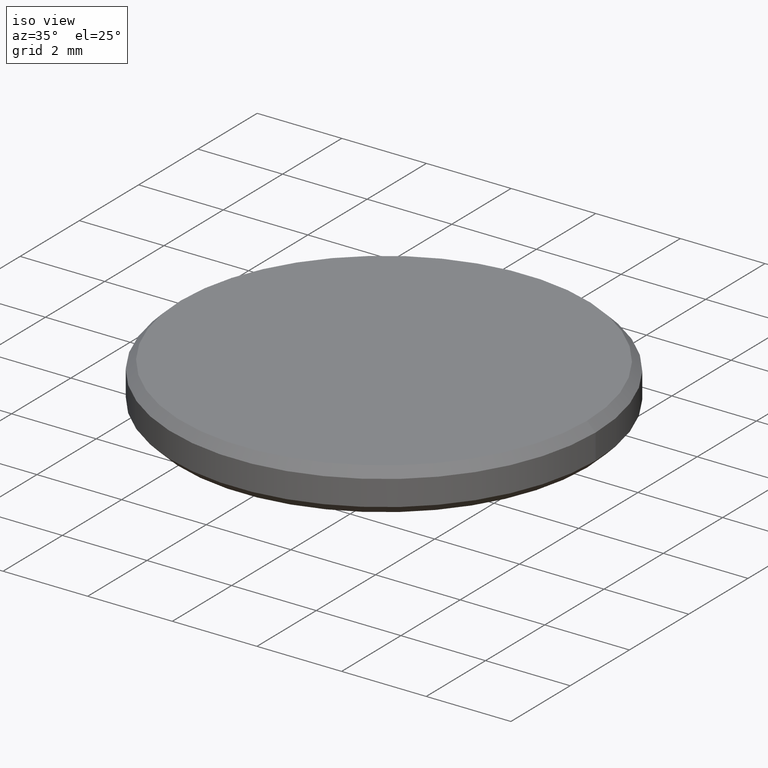
[diagram: clean part render]
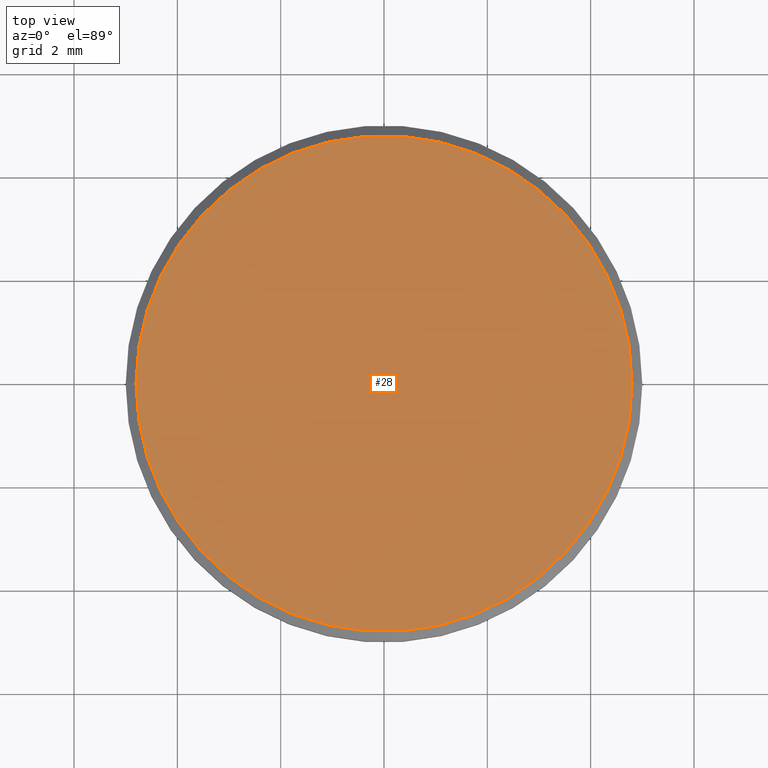
[diagram: tour spotlight — one face highlighted and labeled with its STEP entity id]
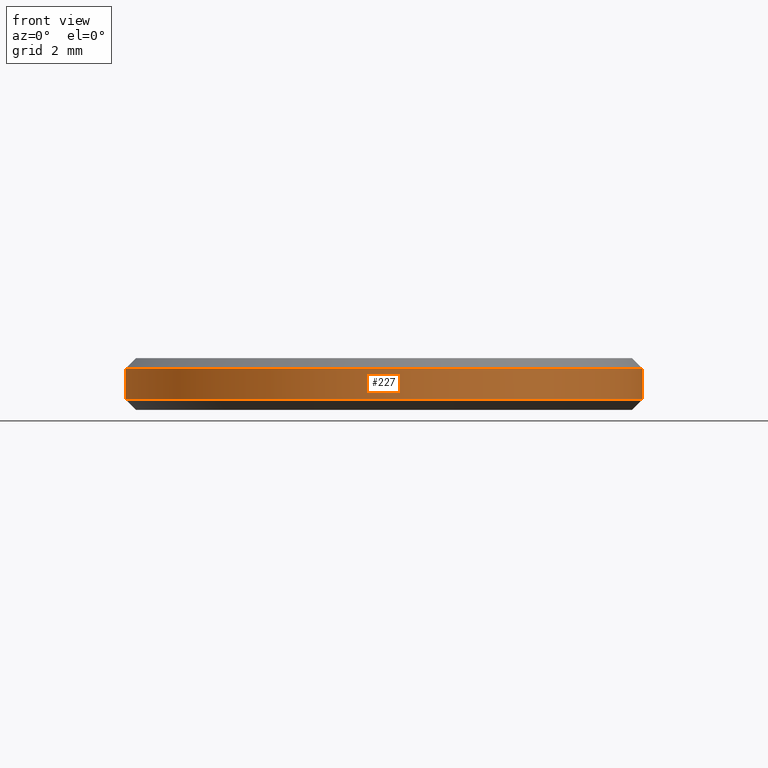
[diagram: tour spotlight — one face highlighted and labeled with its STEP entity id]
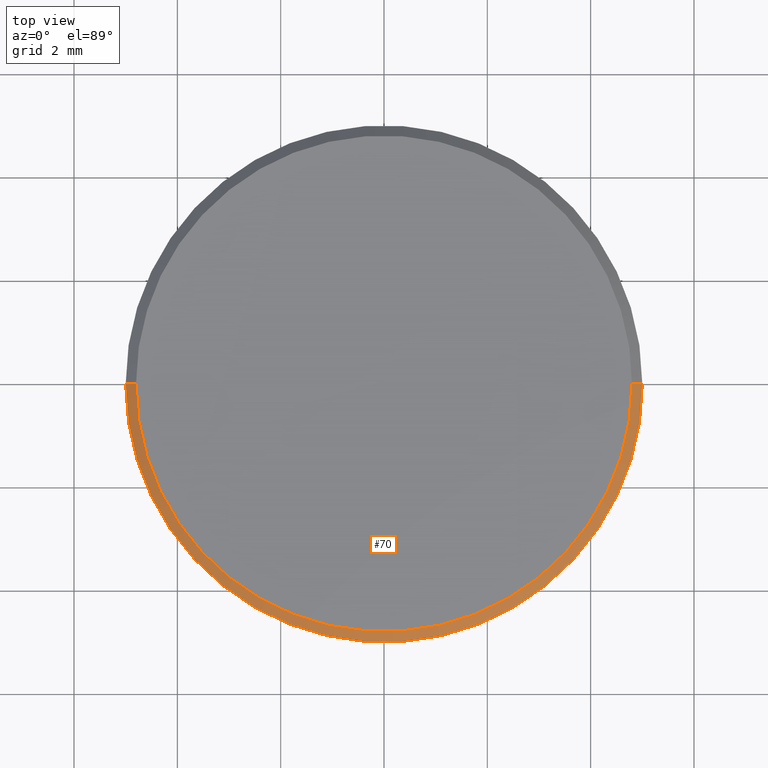
[diagram: tour spotlight — one face highlighted and labeled with its STEP entity id]
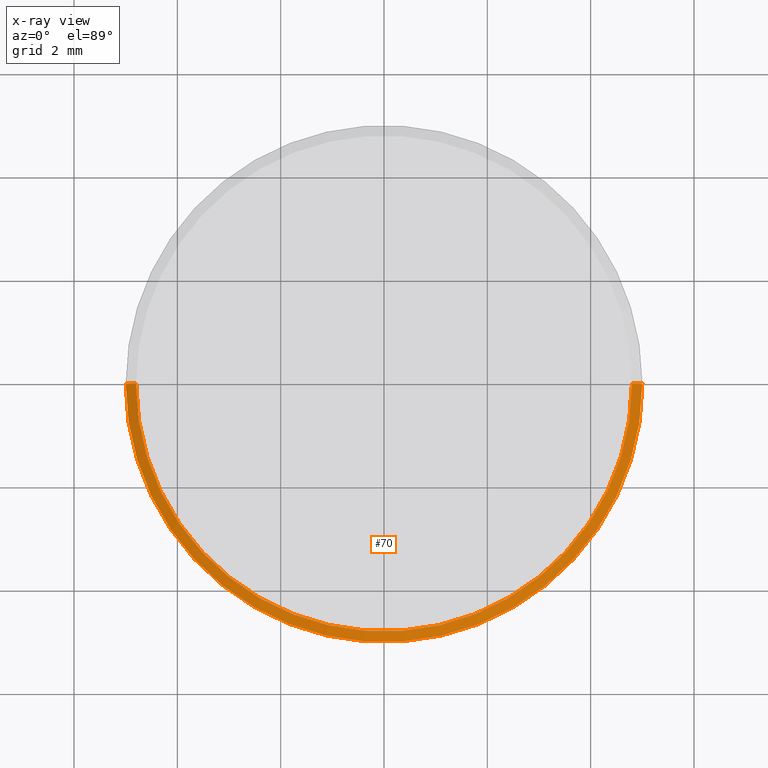
[diagram: x-ray of the same camera — body ghosted, this tour face saturated]
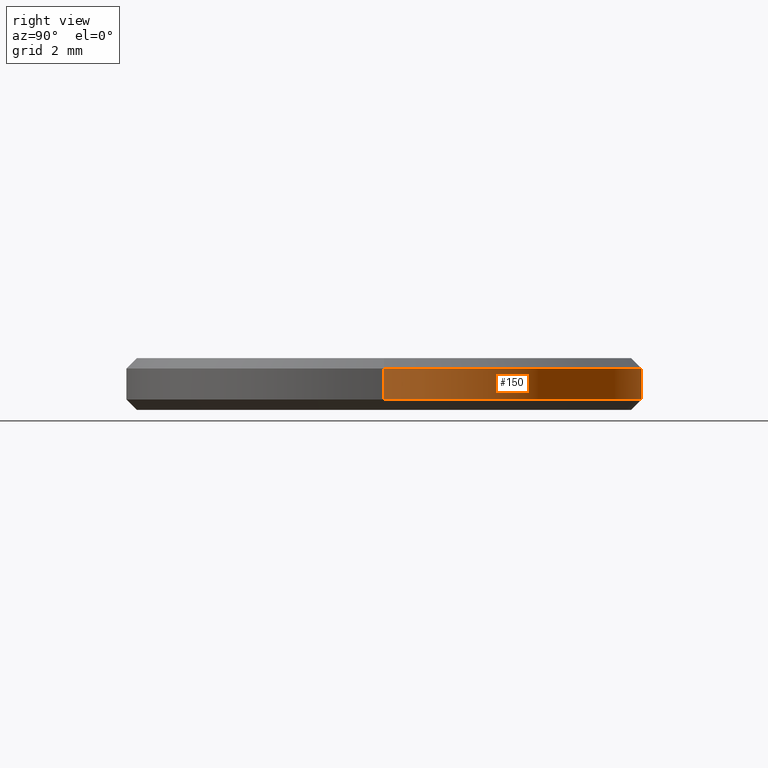
[diagram: tour spotlight — one face highlighted and labeled with its STEP entity id]
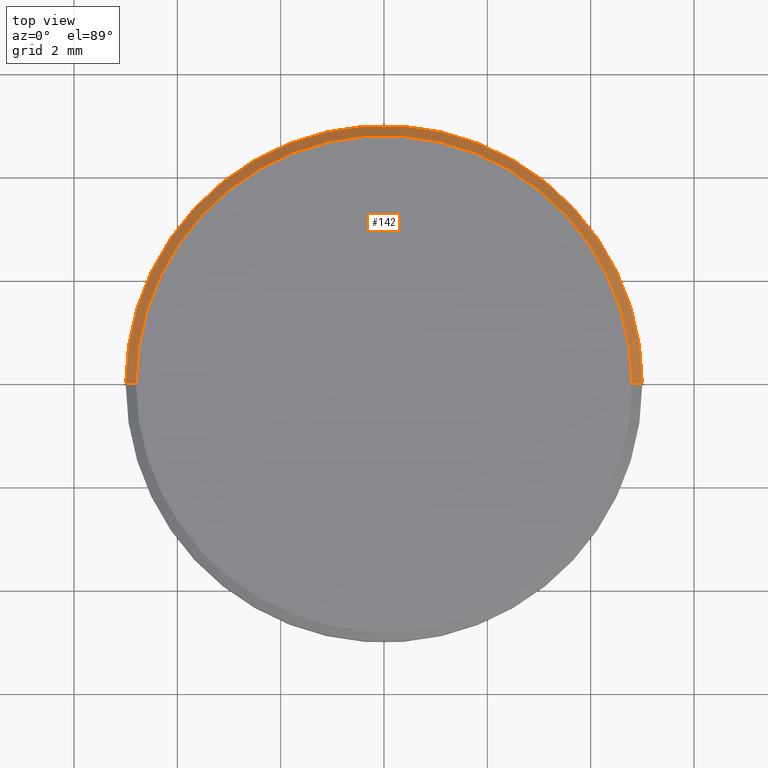
[diagram: tour spotlight — one face highlighted and labeled with its STEP entity id]
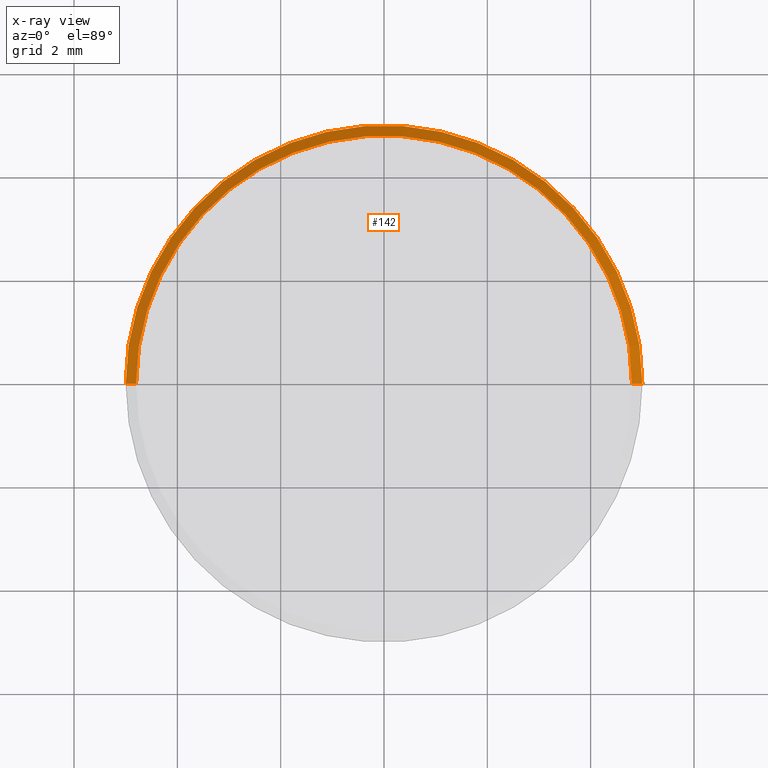
[diagram: x-ray of the same camera — body ghosted, this tour face saturated]
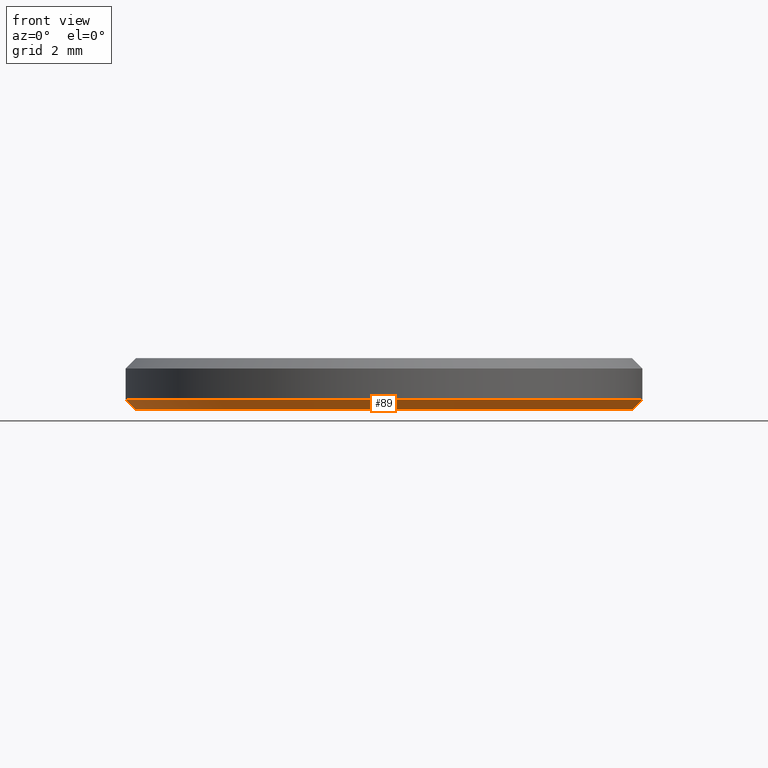
[diagram: tour spotlight — one face highlighted and labeled with its STEP entity id]
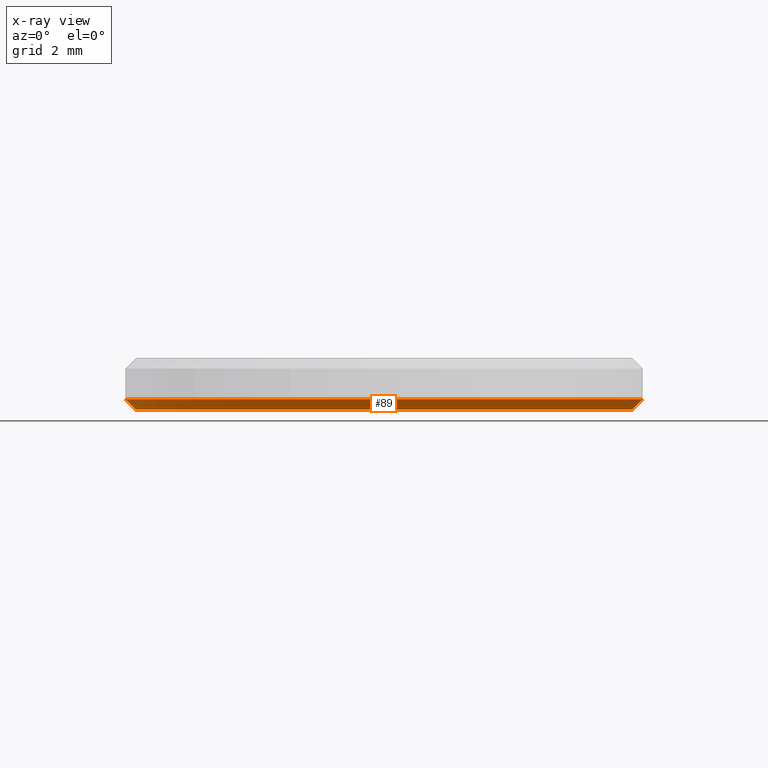
[diagram: x-ray of the same camera — body ghosted, this tour face saturated]
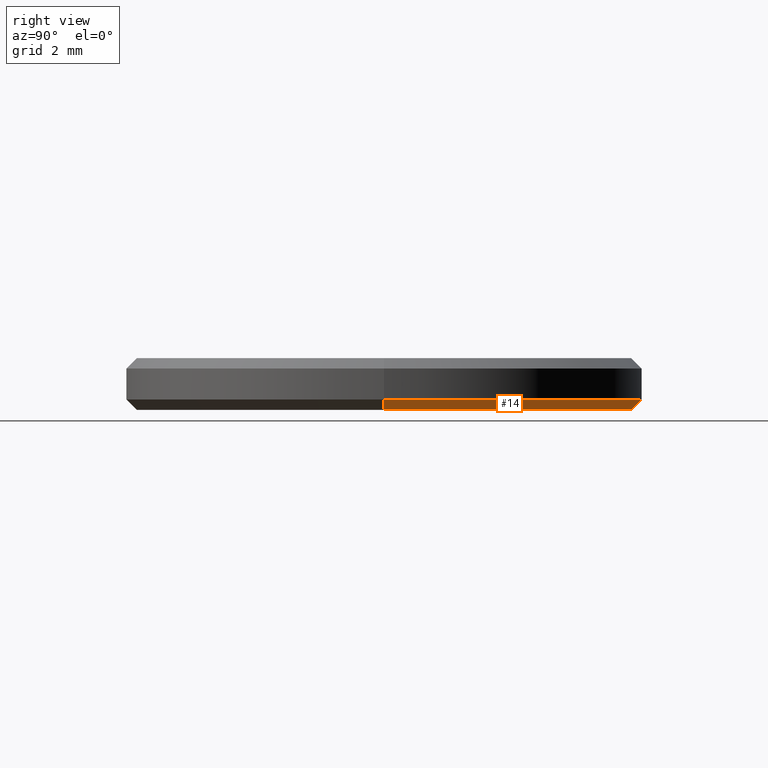
[diagram: tour spotlight — one face highlighted and labeled with its STEP entity id]
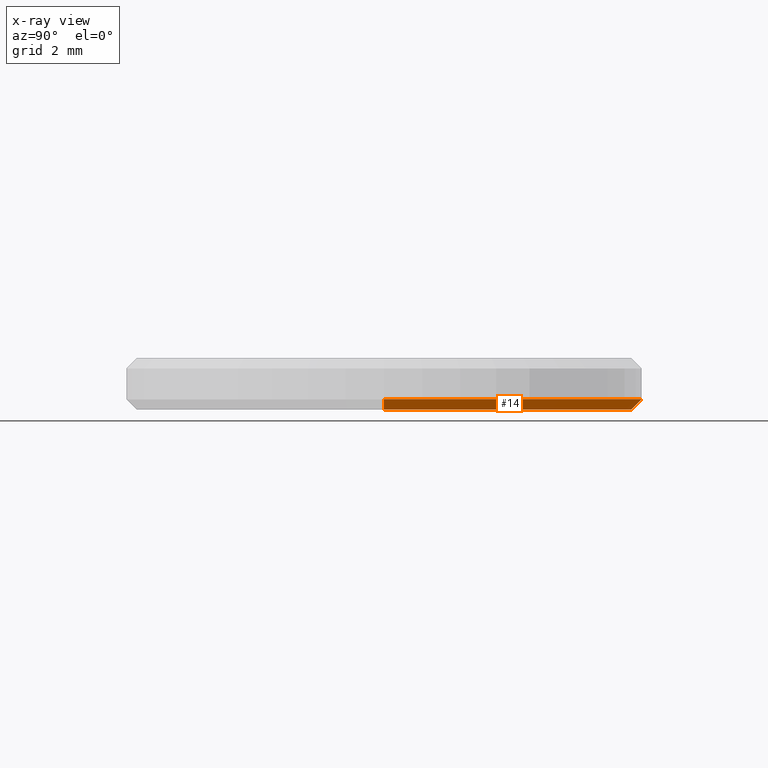
[diagram: x-ray of the same camera — body ghosted, this tour face saturated]
A machine part: a face-by-face anatomy tour. The part has 8 B-rep faces; the first image is the clean iso view, then the 7 largest visible faces are spotlighted one at a time (largest first), each with its STEP entity span.

Face 1 — top view, entity #28. In plain terms, the highlighted planar face has unit normal (0, 0, 1).
Definition (entity closure, byte-faithful):
#3 = VERTEX_POINT ( 'NONE', #158 ) ;
#8 = EDGE_CURVE ( 'NONE', #237, #3, #152, .T. ) ;
#13 = CARTESIAN_POINT ( 'NONE',  ( 4.800000000000002487, 6.000769315822031726E-16, 1.000000000000000000 ) ) ;
#22 = CARTESIAN_POINT ( 'NONE',  ( 0.000000000000000000, 0.000000000000000000, 1.000000000000000000 ) ) ;
#24 = ORIENTED_EDGE ( 'NONE', *, *, #127, .T. ) ;
#28 = ADVANCED_FACE ( 'NONE', ( #41 ), #101, .T. ) ;
#34 = AXIS2_PLACEMENT_3D ( 'NONE', #143, #215, #216 ) ;
#41 = FACE_OUTER_BOUND ( 'NONE', #99, .T. ) ;
#46 = CIRCLE ( 'NONE', #34, 4.800000000000002487 ) ;
#61 = DIRECTION ( 'NONE',  ( 0.000000000000000000, 0.000000000000000000, 1.000000000000000000 ) ) ;
#82 = DIRECTION ( 'NONE',  ( 1.000000000000000000, 0.000000000000000000, -0.000000000000000000 ) ) ;
#86 = ORIENTED_EDGE ( 'NONE', *, *, #8, .T. ) ;
#99 = EDGE_LOOP ( 'NONE', ( #24, #86 ) ) ;
#101 = PLANE ( 'NONE',  #122 ) ;
#122 = AXIS2_PLACEMENT_3D ( 'NONE', #239, #61, #82 ) ;
#127 = EDGE_CURVE ( 'NONE', #3, #237, #46, .T. ) ;
#143 = CARTESIAN_POINT ( 'NONE',  ( 0.000000000000000000, 0.000000000000000000, 1.000000000000000000 ) ) ;
#152 = CIRCLE ( 'NONE', #177, 4.800000000000002487 ) ;
#158 = CARTESIAN_POINT ( 'NONE',  ( -4.800000000000002487, 0.000000000000000000, 1.000000000000000000 ) ) ;
#177 = AXIS2_PLACEMENT_3D ( 'NONE', #22, #240, #229 ) ;
#215 = DIRECTION ( 'NONE',  ( 0.000000000000000000, 0.000000000000000000, 1.000000000000000000 ) ) ;
#216 = DIRECTION ( 'NONE',  ( 1.000000000000000000, 0.000000000000000000, 0.000000000000000000 ) ) ;
#229 = DIRECTION ( 'NONE',  ( 1.000000000000000000, 0.000000000000000000, 0.000000000000000000 ) ) ;
#237 = VERTEX_POINT ( 'NONE', #13 ) ;
#239 = CARTESIAN_POINT ( 'NONE',  ( 0.000000000000000000, 0.000000000000000000, 1.000000000000000000 ) ) ;
#240 = DIRECTION ( 'NONE',  ( 0.000000000000000000, 0.000000000000000000, 1.000000000000000000 ) ) ;

Face 2 — front view, entity #227. In plain terms, the highlighted cylindrical surface (partial cylindrical patch) has radius 5 mm, axis along (-0, -0, -1).
Definition (entity closure, byte-faithful):
#1 = CARTESIAN_POINT ( 'NONE',  ( 5.000000000000000000, 6.123233995736766282E-16, 0.1999999999999996503 ) ) ;
#17 = VERTEX_POINT ( 'NONE', #1 ) ;
#18 = ORIENTED_EDGE ( 'NONE', *, *, #110, .T. ) ;
#23 = ORIENTED_EDGE ( 'NONE', *, *, #55, .T. ) ;
#37 = EDGE_CURVE ( 'NONE', #97, #17, #211, .T. ) ;
#42 = LINE ( 'NONE', #118, #113 ) ;
#45 = CARTESIAN_POINT ( 'NONE',  ( 0.000000000000000000, 0.000000000000000000, 0.1999999999999996503 ) ) ;
#53 = DIRECTION ( 'NONE',  ( -1.000000000000000000, 0.000000000000000000, 0.000000000000000000 ) ) ;
#55 = EDGE_CURVE ( 'NONE', #184, #97, #42, .T. ) ;
#56 = CARTESIAN_POINT ( 'NONE',  ( 5.000000000000000000, 6.123233995736766282E-16, 1.000000000000000000 ) ) ;
#93 = CIRCLE ( 'NONE', #160, 5.000000000000000000 ) ;
#97 = VERTEX_POINT ( 'NONE', #138 ) ;
#106 = VECTOR ( 'NONE', #220, 1000.000000000000000 ) ;
#110 = EDGE_CURVE ( 'NONE', #153, #184, #93, .T. ) ;
#113 = VECTOR ( 'NONE', #226, 1000.000000000000000 ) ;
#116 = ORIENTED_EDGE ( 'NONE', *, *, #235, .F. ) ;
#118 = CARTESIAN_POINT ( 'NONE',  ( -5.000000000000000000, 0.000000000000000000, 1.000000000000000000 ) ) ;
#121 = CARTESIAN_POINT ( 'NONE',  ( 0.000000000000000000, 0.000000000000000000, 0.8000000000000012657 ) ) ;
#129 = EDGE_LOOP ( 'NONE', ( #116, #18, #23, #191 ) ) ;
#138 = CARTESIAN_POINT ( 'NONE',  ( -5.000000000000000000, 0.000000000000000000, 0.1999999999999996503 ) ) ;
#153 = VERTEX_POINT ( 'NONE', #193 ) ;
#155 = DIRECTION ( 'NONE',  ( 1.000000000000000000, 0.000000000000000000, 0.000000000000000000 ) ) ;
#160 = AXIS2_PLACEMENT_3D ( 'NONE', #121, #230, #174 ) ;
#161 = AXIS2_PLACEMENT_3D ( 'NONE', #181, #182, #53 ) ;
#174 = DIRECTION ( 'NONE',  ( 1.000000000000000000, 0.000000000000000000, 0.000000000000000000 ) ) ;
#175 = CARTESIAN_POINT ( 'NONE',  ( -5.000000000000000000, 0.000000000000000000, 0.8000000000000012657 ) ) ;
#179 = FACE_OUTER_BOUND ( 'NONE', #129, .T. ) ;
#181 = CARTESIAN_POINT ( 'NONE',  ( 0.000000000000000000, 0.000000000000000000, 1.000000000000000000 ) ) ;
#182 = DIRECTION ( 'NONE',  ( -0.000000000000000000, -0.000000000000000000, -1.000000000000000000 ) ) ;
#184 = VERTEX_POINT ( 'NONE', #175 ) ;
#191 = ORIENTED_EDGE ( 'NONE', *, *, #37, .T. ) ;
#193 = CARTESIAN_POINT ( 'NONE',  ( 5.000000000000000000, 6.123233995736766282E-16, 0.8000000000000012657 ) ) ;
#198 = AXIS2_PLACEMENT_3D ( 'NONE', #45, #204, #155 ) ;
#199 = LINE ( 'NONE', #56, #106 ) ;
#204 = DIRECTION ( 'NONE',  ( -0.000000000000000000, -0.000000000000000000, 1.000000000000000000 ) ) ;
#211 = CIRCLE ( 'NONE', #198, 5.000000000000000000 ) ;
#220 = DIRECTION ( 'NONE',  ( -0.000000000000000000, -0.000000000000000000, -1.000000000000000000 ) ) ;
#221 = CYLINDRICAL_SURFACE ( 'NONE', #161, 5.000000000000000000 ) ;
#226 = DIRECTION ( 'NONE',  ( -0.000000000000000000, -0.000000000000000000, -1.000000000000000000 ) ) ;
#227 = ADVANCED_FACE ( 'NONE', ( #179 ), #221, .T. ) ;
#230 = DIRECTION ( 'NONE',  ( 0.000000000000000000, 0.000000000000000000, -1.000000000000000000 ) ) ;
#235 = EDGE_CURVE ( 'NONE', #153, #17, #199, .T. ) ;

Face 3 — top view, entity #70. An x-ray twin of the same camera follows (body ghosted, this face saturated) — the face is partly hidden behind the body. In plain terms, the highlighted conical surface has half-angle 45 deg.
Definition (entity closure, byte-faithful):
#3 = VERTEX_POINT ( 'NONE', #158 ) ;
#4 = VECTOR ( 'NONE', #47, 1000.000000000000114 ) ;
#13 = CARTESIAN_POINT ( 'NONE',  ( 4.800000000000002487, 6.000769315822031726E-16, 1.000000000000000000 ) ) ;
#20 = ORIENTED_EDGE ( 'NONE', *, *, #110, .F. ) ;
#26 = VECTOR ( 'NONE', #36, 1000.000000000000114 ) ;
#34 = AXIS2_PLACEMENT_3D ( 'NONE', #143, #215, #216 ) ;
#36 = DIRECTION ( 'NONE',  ( -0.7071067811865460184, 0.000000000000000000, -0.7071067811865489050 ) ) ;
#43 = DIRECTION ( 'NONE',  ( 0.000000000000000000, 0.000000000000000000, -1.000000000000000000 ) ) ;
#46 = CIRCLE ( 'NONE', #34, 4.800000000000002487 ) ;
#47 = DIRECTION ( 'NONE',  ( 0.7071067811865460184, 8.659560562354913137E-17, -0.7071067811865489050 ) ) ;
#52 = CONICAL_SURFACE ( 'NONE', #140, 4.800000000000002487, 0.7853981633974461696 ) ;
#70 = ADVANCED_FACE ( 'NONE', ( #103 ), #52, .T. ) ;
#93 = CIRCLE ( 'NONE', #160, 5.000000000000000000 ) ;
#103 = FACE_OUTER_BOUND ( 'NONE', #148, .T. ) ;
#104 = ORIENTED_EDGE ( 'NONE', *, *, #217, .T. ) ;
#105 = CARTESIAN_POINT ( 'NONE',  ( 4.800000000000002487, 5.878304635907297169E-16, 1.000000000000000000 ) ) ;
#110 = EDGE_CURVE ( 'NONE', #153, #184, #93, .T. ) ;
#115 = LINE ( 'NONE', #132, #26 ) ;
#121 = CARTESIAN_POINT ( 'NONE',  ( 0.000000000000000000, 0.000000000000000000, 0.8000000000000012657 ) ) ;
#123 = LINE ( 'NONE', #105, #4 ) ;
#127 = EDGE_CURVE ( 'NONE', #3, #237, #46, .T. ) ;
#132 = CARTESIAN_POINT ( 'NONE',  ( -4.800000000000002487, 0.000000000000000000, 1.000000000000000000 ) ) ;
#136 = CARTESIAN_POINT ( 'NONE',  ( 0.000000000000000000, 0.000000000000000000, 1.000000000000000000 ) ) ;
#140 = AXIS2_PLACEMENT_3D ( 'NONE', #136, #43, #228 ) ;
#143 = CARTESIAN_POINT ( 'NONE',  ( 0.000000000000000000, 0.000000000000000000, 1.000000000000000000 ) ) ;
#148 = EDGE_LOOP ( 'NONE', ( #159, #169, #104, #20 ) ) ;
#153 = VERTEX_POINT ( 'NONE', #193 ) ;
#158 = CARTESIAN_POINT ( 'NONE',  ( -4.800000000000002487, 0.000000000000000000, 1.000000000000000000 ) ) ;
#159 = ORIENTED_EDGE ( 'NONE', *, *, #180, .F. ) ;
#160 = AXIS2_PLACEMENT_3D ( 'NONE', #121, #230, #174 ) ;
#169 = ORIENTED_EDGE ( 'NONE', *, *, #127, .F. ) ;
#174 = DIRECTION ( 'NONE',  ( 1.000000000000000000, 0.000000000000000000, 0.000000000000000000 ) ) ;
#175 = CARTESIAN_POINT ( 'NONE',  ( -5.000000000000000000, 0.000000000000000000, 0.8000000000000012657 ) ) ;
#180 = EDGE_CURVE ( 'NONE', #237, #153, #123, .T. ) ;
#184 = VERTEX_POINT ( 'NONE', #175 ) ;
#193 = CARTESIAN_POINT ( 'NONE',  ( 5.000000000000000000, 6.123233995736766282E-16, 0.8000000000000012657 ) ) ;
#215 = DIRECTION ( 'NONE',  ( 0.000000000000000000, 0.000000000000000000, 1.000000000000000000 ) ) ;
#216 = DIRECTION ( 'NONE',  ( 1.000000000000000000, 0.000000000000000000, 0.000000000000000000 ) ) ;
#217 = EDGE_CURVE ( 'NONE', #3, #184, #115, .T. ) ;
#228 = DIRECTION ( 'NONE',  ( -1.000000000000000000, 0.000000000000000000, 0.000000000000000000 ) ) ;
#230 = DIRECTION ( 'NONE',  ( 0.000000000000000000, 0.000000000000000000, -1.000000000000000000 ) ) ;
#237 = VERTEX_POINT ( 'NONE', #13 ) ;

Face 4 — right view, entity #150. In plain terms, the highlighted cylindrical surface (partial cylindrical patch) has radius 5 mm, axis along (-0, -0, -1).
Definition (entity closure, byte-faithful):
#1 = CARTESIAN_POINT ( 'NONE',  ( 5.000000000000000000, 6.123233995736766282E-16, 0.1999999999999996503 ) ) ;
#5 = FACE_OUTER_BOUND ( 'NONE', #38, .T. ) ;
#7 = CARTESIAN_POINT ( 'NONE',  ( 0.000000000000000000, 0.000000000000000000, 0.8000000000000012657 ) ) ;
#17 = VERTEX_POINT ( 'NONE', #1 ) ;
#25 = CYLINDRICAL_SURFACE ( 'NONE', #40, 5.000000000000000000 ) ;
#27 = DIRECTION ( 'NONE',  ( -1.000000000000000000, 0.000000000000000000, 0.000000000000000000 ) ) ;
#35 = DIRECTION ( 'NONE',  ( 1.000000000000000000, 0.000000000000000000, 0.000000000000000000 ) ) ;
#38 = EDGE_LOOP ( 'NONE', ( #238, #225, #201, #44 ) ) ;
#40 = AXIS2_PLACEMENT_3D ( 'NONE', #90, #194, #27 ) ;
#42 = LINE ( 'NONE', #118, #113 ) ;
#44 = ORIENTED_EDGE ( 'NONE', *, *, #55, .F. ) ;
#55 = EDGE_CURVE ( 'NONE', #184, #97, #42, .T. ) ;
#56 = CARTESIAN_POINT ( 'NONE',  ( 5.000000000000000000, 6.123233995736766282E-16, 1.000000000000000000 ) ) ;
#74 = AXIS2_PLACEMENT_3D ( 'NONE', #7, #200, #35 ) ;
#90 = CARTESIAN_POINT ( 'NONE',  ( 0.000000000000000000, 0.000000000000000000, 1.000000000000000000 ) ) ;
#97 = VERTEX_POINT ( 'NONE', #138 ) ;
#106 = VECTOR ( 'NONE', #220, 1000.000000000000000 ) ;
#113 = VECTOR ( 'NONE', #226, 1000.000000000000000 ) ;
#118 = CARTESIAN_POINT ( 'NONE',  ( -5.000000000000000000, 0.000000000000000000, 1.000000000000000000 ) ) ;
#138 = CARTESIAN_POINT ( 'NONE',  ( -5.000000000000000000, 0.000000000000000000, 0.1999999999999996503 ) ) ;
#139 = DIRECTION ( 'NONE',  ( -0.000000000000000000, -0.000000000000000000, 1.000000000000000000 ) ) ;
#150 = ADVANCED_FACE ( 'NONE', ( #5 ), #25, .T. ) ;
#153 = VERTEX_POINT ( 'NONE', #193 ) ;
#154 = CIRCLE ( 'NONE', #173, 5.000000000000000000 ) ;
#171 = EDGE_CURVE ( 'NONE', #17, #97, #154, .T. ) ;
#173 = AXIS2_PLACEMENT_3D ( 'NONE', #218, #139, #209 ) ;
#175 = CARTESIAN_POINT ( 'NONE',  ( -5.000000000000000000, 0.000000000000000000, 0.8000000000000012657 ) ) ;
#184 = VERTEX_POINT ( 'NONE', #175 ) ;
#189 = EDGE_CURVE ( 'NONE', #184, #153, #233, .T. ) ;
#193 = CARTESIAN_POINT ( 'NONE',  ( 5.000000000000000000, 6.123233995736766282E-16, 0.8000000000000012657 ) ) ;
#194 = DIRECTION ( 'NONE',  ( -0.000000000000000000, -0.000000000000000000, -1.000000000000000000 ) ) ;
#199 = LINE ( 'NONE', #56, #106 ) ;
#200 = DIRECTION ( 'NONE',  ( 0.000000000000000000, 0.000000000000000000, -1.000000000000000000 ) ) ;
#201 = ORIENTED_EDGE ( 'NONE', *, *, #171, .T. ) ;
#209 = DIRECTION ( 'NONE',  ( 1.000000000000000000, 0.000000000000000000, 0.000000000000000000 ) ) ;
#218 = CARTESIAN_POINT ( 'NONE',  ( 0.000000000000000000, 0.000000000000000000, 0.1999999999999996503 ) ) ;
#220 = DIRECTION ( 'NONE',  ( -0.000000000000000000, -0.000000000000000000, -1.000000000000000000 ) ) ;
#225 = ORIENTED_EDGE ( 'NONE', *, *, #235, .T. ) ;
#226 = DIRECTION ( 'NONE',  ( -0.000000000000000000, -0.000000000000000000, -1.000000000000000000 ) ) ;
#233 = CIRCLE ( 'NONE', #74, 5.000000000000000000 ) ;
#235 = EDGE_CURVE ( 'NONE', #153, #17, #199, .T. ) ;
#238 = ORIENTED_EDGE ( 'NONE', *, *, #189, .T. ) ;

Face 5 — top view, entity #142. An x-ray twin of the same camera follows (body ghosted, this face saturated) — the face is partly hidden behind the body. In plain terms, the highlighted conical surface has half-angle 45 deg.
Definition (entity closure, byte-faithful):
#3 = VERTEX_POINT ( 'NONE', #158 ) ;
#4 = VECTOR ( 'NONE', #47, 1000.000000000000114 ) ;
#7 = CARTESIAN_POINT ( 'NONE',  ( 0.000000000000000000, 0.000000000000000000, 0.8000000000000012657 ) ) ;
#8 = EDGE_CURVE ( 'NONE', #237, #3, #152, .T. ) ;
#13 = CARTESIAN_POINT ( 'NONE',  ( 4.800000000000002487, 6.000769315822031726E-16, 1.000000000000000000 ) ) ;
#15 = ORIENTED_EDGE ( 'NONE', *, *, #180, .T. ) ;
#22 = CARTESIAN_POINT ( 'NONE',  ( 0.000000000000000000, 0.000000000000000000, 1.000000000000000000 ) ) ;
#26 = VECTOR ( 'NONE', #36, 1000.000000000000114 ) ;
#35 = DIRECTION ( 'NONE',  ( 1.000000000000000000, 0.000000000000000000, 0.000000000000000000 ) ) ;
#36 = DIRECTION ( 'NONE',  ( -0.7071067811865460184, 0.000000000000000000, -0.7071067811865489050 ) ) ;
#47 = DIRECTION ( 'NONE',  ( 0.7071067811865460184, 8.659560562354913137E-17, -0.7071067811865489050 ) ) ;
#49 = CARTESIAN_POINT ( 'NONE',  ( 0.000000000000000000, 0.000000000000000000, 1.000000000000000000 ) ) ;
#74 = AXIS2_PLACEMENT_3D ( 'NONE', #7, #200, #35 ) ;
#80 = ORIENTED_EDGE ( 'NONE', *, *, #189, .F. ) ;
#83 = ORIENTED_EDGE ( 'NONE', *, *, #217, .F. ) ;
#87 = AXIS2_PLACEMENT_3D ( 'NONE', #49, #88, #196 ) ;
#88 = DIRECTION ( 'NONE',  ( 0.000000000000000000, 0.000000000000000000, -1.000000000000000000 ) ) ;
#105 = CARTESIAN_POINT ( 'NONE',  ( 4.800000000000002487, 5.878304635907297169E-16, 1.000000000000000000 ) ) ;
#115 = LINE ( 'NONE', #132, #26 ) ;
#123 = LINE ( 'NONE', #105, #4 ) ;
#128 = FACE_OUTER_BOUND ( 'NONE', #188, .T. ) ;
#132 = CARTESIAN_POINT ( 'NONE',  ( -4.800000000000002487, 0.000000000000000000, 1.000000000000000000 ) ) ;
#142 = ADVANCED_FACE ( 'NONE', ( #128 ), #219, .T. ) ;
#152 = CIRCLE ( 'NONE', #177, 4.800000000000002487 ) ;
#153 = VERTEX_POINT ( 'NONE', #193 ) ;
#158 = CARTESIAN_POINT ( 'NONE',  ( -4.800000000000002487, 0.000000000000000000, 1.000000000000000000 ) ) ;
#172 = ORIENTED_EDGE ( 'NONE', *, *, #8, .F. ) ;
#175 = CARTESIAN_POINT ( 'NONE',  ( -5.000000000000000000, 0.000000000000000000, 0.8000000000000012657 ) ) ;
#177 = AXIS2_PLACEMENT_3D ( 'NONE', #22, #240, #229 ) ;
#180 = EDGE_CURVE ( 'NONE', #237, #153, #123, .T. ) ;
#184 = VERTEX_POINT ( 'NONE', #175 ) ;
#188 = EDGE_LOOP ( 'NONE', ( #172, #15, #80, #83 ) ) ;
#189 = EDGE_CURVE ( 'NONE', #184, #153, #233, .T. ) ;
#193 = CARTESIAN_POINT ( 'NONE',  ( 5.000000000000000000, 6.123233995736766282E-16, 0.8000000000000012657 ) ) ;
#196 = DIRECTION ( 'NONE',  ( -1.000000000000000000, 0.000000000000000000, 0.000000000000000000 ) ) ;
#200 = DIRECTION ( 'NONE',  ( 0.000000000000000000, 0.000000000000000000, -1.000000000000000000 ) ) ;
#217 = EDGE_CURVE ( 'NONE', #3, #184, #115, .T. ) ;
#219 = CONICAL_SURFACE ( 'NONE', #87, 4.800000000000002487, 0.7853981633974461696 ) ;
#229 = DIRECTION ( 'NONE',  ( 1.000000000000000000, 0.000000000000000000, 0.000000000000000000 ) ) ;
#233 = CIRCLE ( 'NONE', #74, 5.000000000000000000 ) ;
#237 = VERTEX_POINT ( 'NONE', #13 ) ;
#240 = DIRECTION ( 'NONE',  ( 0.000000000000000000, 0.000000000000000000, 1.000000000000000000 ) ) ;

Face 6 — front view, entity #89. An x-ray twin of the same camera follows (body ghosted, this face saturated) — the face is partly hidden behind the body. In plain terms, the highlighted conical surface has half-angle 45 deg.
Definition (entity closure, byte-faithful):
#1 = CARTESIAN_POINT ( 'NONE',  ( 5.000000000000000000, 6.123233995736766282E-16, 0.1999999999999996503 ) ) ;
#2 = CARTESIAN_POINT ( 'NONE',  ( 0.000000000000000000, 0.000000000000000000, 0.1999999999999996503 ) ) ;
#9 = CARTESIAN_POINT ( 'NONE',  ( 0.000000000000000000, 0.000000000000000000, 0.000000000000000000 ) ) ;
#10 = AXIS2_PLACEMENT_3D ( 'NONE', #9, #72, #231 ) ;
#11 = LINE ( 'NONE', #147, #203 ) ;
#17 = VERTEX_POINT ( 'NONE', #1 ) ;
#19 = CONICAL_SURFACE ( 'NONE', #130, 5.000000000000000000, 0.7853981633974503884 ) ;
#33 = VERTEX_POINT ( 'NONE', #135 ) ;
#37 = EDGE_CURVE ( 'NONE', #97, #17, #211, .T. ) ;
#45 = CARTESIAN_POINT ( 'NONE',  ( 0.000000000000000000, 0.000000000000000000, 0.1999999999999996503 ) ) ;
#48 = VECTOR ( 'NONE', #223, 1000.000000000000000 ) ;
#51 = CARTESIAN_POINT ( 'NONE',  ( 5.000000000000000000, 0.000000000000000000, 0.1999999999999996503 ) ) ;
#57 = LINE ( 'NONE', #51, #48 ) ;
#58 = ORIENTED_EDGE ( 'NONE', *, *, #37, .F. ) ;
#65 = DIRECTION ( 'NONE',  ( 1.000000000000000000, 0.000000000000000000, 0.000000000000000000 ) ) ;
#72 = DIRECTION ( 'NONE',  ( -0.000000000000000000, -0.000000000000000000, -1.000000000000000000 ) ) ;
#85 = DIRECTION ( 'NONE',  ( -0.000000000000000000, -0.000000000000000000, 1.000000000000000000 ) ) ;
#89 = ADVANCED_FACE ( 'NONE', ( #190 ), #19, .T. ) ;
#97 = VERTEX_POINT ( 'NONE', #138 ) ;
#117 = ORIENTED_EDGE ( 'NONE', *, *, #232, .T. ) ;
#119 = EDGE_CURVE ( 'NONE', #183, #33, #224, .T. ) ;
#124 = CARTESIAN_POINT ( 'NONE',  ( 4.799999999999999822, 0.000000000000000000, 0.000000000000000000 ) ) ;
#130 = AXIS2_PLACEMENT_3D ( 'NONE', #2, #85, #65 ) ;
#135 = CARTESIAN_POINT ( 'NONE',  ( -4.799999999999999822, 6.000769315822029754E-16, 0.000000000000000000 ) ) ;
#138 = CARTESIAN_POINT ( 'NONE',  ( -5.000000000000000000, 0.000000000000000000, 0.1999999999999996503 ) ) ;
#147 = CARTESIAN_POINT ( 'NONE',  ( -5.000000000000000000, 6.123233995736765296E-16, 0.1999999999999996503 ) ) ;
#149 = DIRECTION ( 'NONE',  ( -0.7071067811865490160, 8.659560562354950115E-17, 0.7071067811865459074 ) ) ;
#155 = DIRECTION ( 'NONE',  ( 1.000000000000000000, 0.000000000000000000, 0.000000000000000000 ) ) ;
#168 = ORIENTED_EDGE ( 'NONE', *, *, #119, .F. ) ;
#178 = EDGE_LOOP ( 'NONE', ( #205, #168, #117, #58 ) ) ;
#183 = VERTEX_POINT ( 'NONE', #124 ) ;
#190 = FACE_OUTER_BOUND ( 'NONE', #178, .T. ) ;
#198 = AXIS2_PLACEMENT_3D ( 'NONE', #45, #204, #155 ) ;
#203 = VECTOR ( 'NONE', #149, 1000.000000000000000 ) ;
#204 = DIRECTION ( 'NONE',  ( -0.000000000000000000, -0.000000000000000000, 1.000000000000000000 ) ) ;
#205 = ORIENTED_EDGE ( 'NONE', *, *, #206, .F. ) ;
#206 = EDGE_CURVE ( 'NONE', #33, #97, #11, .T. ) ;
#211 = CIRCLE ( 'NONE', #198, 5.000000000000000000 ) ;
#223 = DIRECTION ( 'NONE',  ( 0.7071067811865490160, 0.000000000000000000, 0.7071067811865459074 ) ) ;
#224 = CIRCLE ( 'NONE', #10, 4.799999999999999822 ) ;
#231 = DIRECTION ( 'NONE',  ( 1.000000000000000000, 0.000000000000000000, 0.000000000000000000 ) ) ;
#232 = EDGE_CURVE ( 'NONE', #183, #17, #57, .T. ) ;

Face 7 — right view, entity #14. An x-ray twin of the same camera follows (body ghosted, this face saturated) — the face is partly hidden behind the body. In plain terms, the highlighted conical surface has half-angle 45 deg.
Definition (entity closure, byte-faithful):
#1 = CARTESIAN_POINT ( 'NONE',  ( 5.000000000000000000, 6.123233995736766282E-16, 0.1999999999999996503 ) ) ;
#11 = LINE ( 'NONE', #147, #203 ) ;
#12 = ORIENTED_EDGE ( 'NONE', *, *, #64, .F. ) ;
#14 = ADVANCED_FACE ( 'NONE', ( #133 ), #186, .T. ) ;
#17 = VERTEX_POINT ( 'NONE', #1 ) ;
#33 = VERTEX_POINT ( 'NONE', #135 ) ;
#48 = VECTOR ( 'NONE', #223, 1000.000000000000000 ) ;
#51 = CARTESIAN_POINT ( 'NONE',  ( 5.000000000000000000, 0.000000000000000000, 0.1999999999999996503 ) ) ;
#57 = LINE ( 'NONE', #51, #48 ) ;
#59 = DIRECTION ( 'NONE',  ( 1.000000000000000000, 0.000000000000000000, 0.000000000000000000 ) ) ;
#62 = DIRECTION ( 'NONE',  ( -0.000000000000000000, -0.000000000000000000, -1.000000000000000000 ) ) ;
#64 = EDGE_CURVE ( 'NONE', #33, #183, #166, .T. ) ;
#68 = AXIS2_PLACEMENT_3D ( 'NONE', #185, #202, #59 ) ;
#76 = EDGE_LOOP ( 'NONE', ( #12, #112, #98, #164 ) ) ;
#91 = AXIS2_PLACEMENT_3D ( 'NONE', #170, #62, #156 ) ;
#97 = VERTEX_POINT ( 'NONE', #138 ) ;
#98 = ORIENTED_EDGE ( 'NONE', *, *, #171, .F. ) ;
#112 = ORIENTED_EDGE ( 'NONE', *, *, #206, .T. ) ;
#124 = CARTESIAN_POINT ( 'NONE',  ( 4.799999999999999822, 0.000000000000000000, 0.000000000000000000 ) ) ;
#133 = FACE_OUTER_BOUND ( 'NONE', #76, .T. ) ;
#135 = CARTESIAN_POINT ( 'NONE',  ( -4.799999999999999822, 6.000769315822029754E-16, 0.000000000000000000 ) ) ;
#138 = CARTESIAN_POINT ( 'NONE',  ( -5.000000000000000000, 0.000000000000000000, 0.1999999999999996503 ) ) ;
#139 = DIRECTION ( 'NONE',  ( -0.000000000000000000, -0.000000000000000000, 1.000000000000000000 ) ) ;
#147 = CARTESIAN_POINT ( 'NONE',  ( -5.000000000000000000, 6.123233995736765296E-16, 0.1999999999999996503 ) ) ;
#149 = DIRECTION ( 'NONE',  ( -0.7071067811865490160, 8.659560562354950115E-17, 0.7071067811865459074 ) ) ;
#154 = CIRCLE ( 'NONE', #173, 5.000000000000000000 ) ;
#156 = DIRECTION ( 'NONE',  ( 1.000000000000000000, 0.000000000000000000, 0.000000000000000000 ) ) ;
#164 = ORIENTED_EDGE ( 'NONE', *, *, #232, .F. ) ;
#166 = CIRCLE ( 'NONE', #91, 4.799999999999999822 ) ;
#170 = CARTESIAN_POINT ( 'NONE',  ( 0.000000000000000000, 0.000000000000000000, 0.000000000000000000 ) ) ;
#171 = EDGE_CURVE ( 'NONE', #17, #97, #154, .T. ) ;
#173 = AXIS2_PLACEMENT_3D ( 'NONE', #218, #139, #209 ) ;
#183 = VERTEX_POINT ( 'NONE', #124 ) ;
#185 = CARTESIAN_POINT ( 'NONE',  ( 0.000000000000000000, 0.000000000000000000, 0.1999999999999996503 ) ) ;
#186 = CONICAL_SURFACE ( 'NONE', #68, 5.000000000000000000, 0.7853981633974503884 ) ;
#202 = DIRECTION ( 'NONE',  ( -0.000000000000000000, -0.000000000000000000, 1.000000000000000000 ) ) ;
#203 = VECTOR ( 'NONE', #149, 1000.000000000000000 ) ;
#206 = EDGE_CURVE ( 'NONE', #33, #97, #11, .T. ) ;
#209 = DIRECTION ( 'NONE',  ( 1.000000000000000000, 0.000000000000000000, 0.000000000000000000 ) ) ;
#218 = CARTESIAN_POINT ( 'NONE',  ( 0.000000000000000000, 0.000000000000000000, 0.1999999999999996503 ) ) ;
#223 = DIRECTION ( 'NONE',  ( 0.7071067811865490160, 0.000000000000000000, 0.7071067811865459074 ) ) ;
#232 = EDGE_CURVE ( 'NONE', #183, #17, #57, .T. ) ;